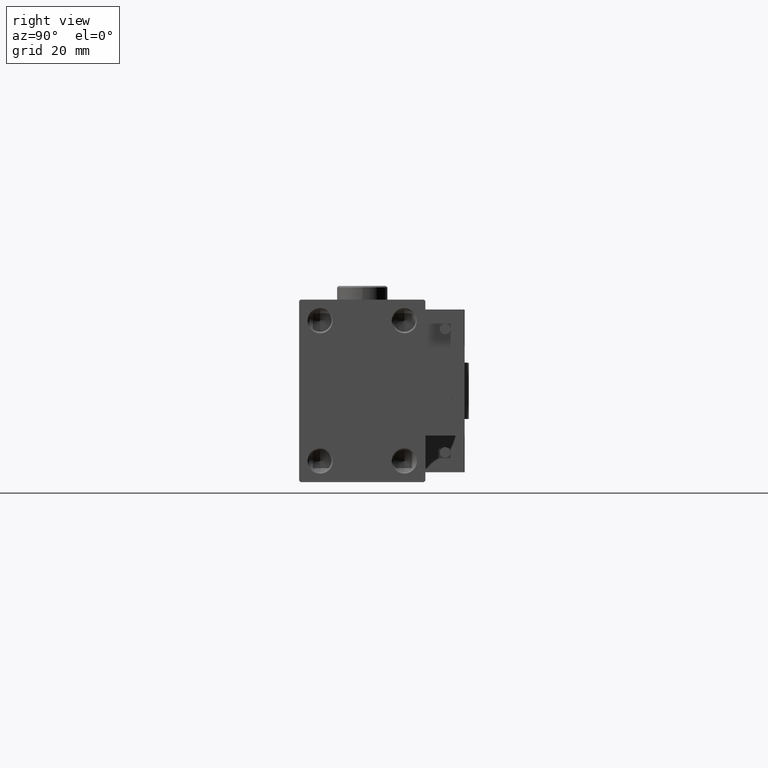
[diagram: clean part render]
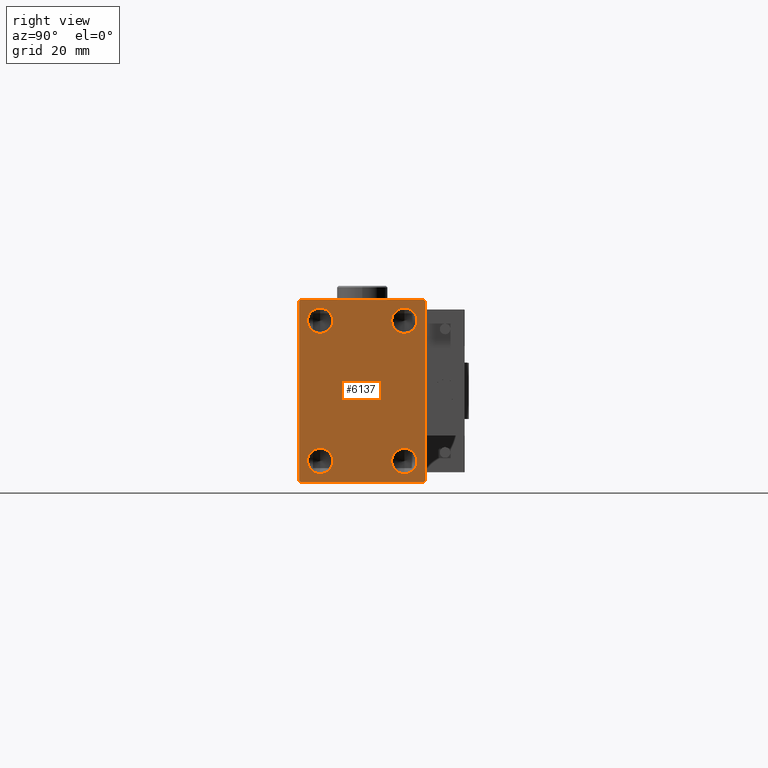
[diagram: same view with one face highlighted and labeled with its STEP entity id]
A machine part, right view. The second image highlights one B-rep face of the part: STEP entity #6137.
In plain terms, the highlighted planar face has unit normal (1, 0, 0).
Its self-contained STEP definition (entity closure, byte-faithful):
#468 = ORIENTED_EDGE ( 'NONE', *, *, #12943, .T. ) ;
#936 = DIRECTION ( 'NONE',  ( 1.000000000000000000, -0.000000000000000000, -0.000000000000000000 ) ) ;
#1618 = CARTESIAN_POINT ( 'NONE',  ( 170.0000000000000000, 22.50000000000000000, 31.99999999999999289 ) ) ;
#1869 = LINE ( 'NONE', #30060, #11277 ) ;
#2014 = LINE ( 'NONE', #38687, #17807 ) ;
#2361 = ORIENTED_EDGE ( 'NONE', *, *, #46003, .T. ) ;
#2905 = EDGE_LOOP ( 'NONE', ( #42837, #17074 ) ) ;
#3009 = AXIS2_PLACEMENT_3D ( 'NONE', #49771, #4593, #24825 ) ;
#3277 = VERTEX_POINT ( 'NONE', #50700 ) ;
#3339 = ORIENTED_EDGE ( 'NONE', *, *, #51389, .F. ) ;
#3379 = CIRCLE ( 'NONE', #22077, 4.499999999999976019 ) ;
#3417 = DIRECTION ( 'NONE',  ( 0.000000000000000000, 1.000000000000000000, 0.000000000000000000 ) ) ;
#3848 = DIRECTION ( 'NONE',  ( 1.000000000000000000, -0.000000000000000000, -0.000000000000000000 ) ) ;
#4593 = DIRECTION ( 'NONE',  ( 1.000000000000000000, -0.000000000000000000, -0.000000000000000000 ) ) ;
#4695 = EDGE_CURVE ( 'NONE', #50995, #21934, #1869, .T. ) ;
#5286 = DIRECTION ( 'NONE',  ( -0.000000000000000000, 0.7071067811865721087, -0.7071067811865230368 ) ) ;
#5811 = CIRCLE ( 'NONE', #15153, 4.499999999999976019 ) ;
#5816 = EDGE_LOOP ( 'NONE', ( #29959, #38689 ) ) ;
#5928 = VECTOR ( 'NONE', #48728, 1000.000000000000000 ) ;
#6137 = ADVANCED_FACE ( 'NONE', ( #34109, #17633, #50328, #13922, #21635 ), #46350, .T. ) ;
#6508 = CARTESIAN_POINT ( 'NONE',  ( 170.0000000000000000, 21.99999999999999289, -32.50000000000000711 ) ) ;
#6623 = CARTESIAN_POINT ( 'NONE',  ( 170.0000000000000000, -22.49999999999999289, -32.50000000000000711 ) ) ;
#6871 = AXIS2_PLACEMENT_3D ( 'NONE', #36490, #20564, #24818 ) ;
#7635 = VERTEX_POINT ( 'NONE', #16573 ) ;
#7868 = DIRECTION ( 'NONE',  ( 1.000000000000000000, -0.000000000000000000, -0.000000000000000000 ) ) ;
#8191 = VECTOR ( 'NONE', #23412, 1000.000000000000114 ) ;
#8864 = DIRECTION ( 'NONE',  ( 1.000000000000000000, 0.000000000000000000, 0.000000000000000000 ) ) ;
#9281 = ORIENTED_EDGE ( 'NONE', *, *, #38621, .T. ) ;
#9954 = CARTESIAN_POINT ( 'NONE',  ( 170.0000000000000000, 15.00000000000000178, 20.50000000000001421 ) ) ;
#10425 = CARTESIAN_POINT ( 'NONE',  ( 170.0000000000000000, -22.49999999999999289, 32.49999999999998579 ) ) ;
#10633 = VECTOR ( 'NONE', #3417, 1000.000000000000000 ) ;
#10685 = LINE ( 'NONE', #10425, #11479 ) ;
#11277 = VECTOR ( 'NONE', #46273, 1000.000000000000000 ) ;
#11479 = VECTOR ( 'NONE', #42843, 1000.000000000000000 ) ;
#12103 = CARTESIAN_POINT ( 'NONE',  ( 170.0000000000000000, 15.00000000000000178, 25.00000000000000000 ) ) ;
#12230 = VERTEX_POINT ( 'NONE', #14229 ) ;
#12943 = EDGE_CURVE ( 'NONE', #47939, #23895, #43305, .T. ) ;
#13026 = ORIENTED_EDGE ( 'NONE', *, *, #13329, .F. ) ;
#13220 = DIRECTION ( 'NONE',  ( 1.000000000000000000, -0.000000000000000000, -0.000000000000000000 ) ) ;
#13329 = EDGE_CURVE ( 'NONE', #16880, #43420, #42913, .T. ) ;
#13527 = ORIENTED_EDGE ( 'NONE', *, *, #39565, .F. ) ;
#13622 = VERTEX_POINT ( 'NONE', #26924 ) ;
#13656 = DIRECTION ( 'NONE',  ( 0.000000000000000000, 0.000000000000000000, -1.000000000000000000 ) ) ;
#13922 = FACE_BOUND ( 'NONE', #47588, .T. ) ;
#14229 = CARTESIAN_POINT ( 'NONE',  ( 170.0000000000000000, -15.00000000000000000, 29.49999999999998579 ) ) ;
#14847 = VERTEX_POINT ( 'NONE', #30792 ) ;
#15153 = AXIS2_PLACEMENT_3D ( 'NONE', #48378, #39602, #36143 ) ;
#16349 = DIRECTION ( 'NONE',  ( 0.000000000000000000, 0.000000000000000000, -1.000000000000000000 ) ) ;
#16573 = CARTESIAN_POINT ( 'NONE',  ( 170.0000000000000000, -22.49999999999999289, -32.00000000000001421 ) ) ;
#16702 = CARTESIAN_POINT ( 'NONE',  ( 170.0000000000000000, 22.00000000000000000, 32.49999999999999289 ) ) ;
#16775 = CARTESIAN_POINT ( 'NONE',  ( 170.0000000000000000, 22.50000000000000711, -31.99999999999997868 ) ) ;
#16880 = VERTEX_POINT ( 'NONE', #38428 ) ;
#16936 = CIRCLE ( 'NONE', #29643, 4.499999999999976019 ) ;
#17074 = ORIENTED_EDGE ( 'NONE', *, *, #23605, .F. ) ;
#17160 = CARTESIAN_POINT ( 'NONE',  ( 170.0000000000000000, -15.00000000000000000, -29.49999999999998579 ) ) ;
#17328 = ORIENTED_EDGE ( 'NONE', *, *, #29236, .T. ) ;
#17633 = FACE_BOUND ( 'NONE', #49168, .T. ) ;
#17807 = VECTOR ( 'NONE', #35229, 1000.000000000000000 ) ;
#18637 = LINE ( 'NONE', #34835, #8191 ) ;
#20032 = CARTESIAN_POINT ( 'NONE',  ( 170.0000000000000000, 27.25000000000061817, -27.24999999999910472 ) ) ;
#20555 = LINE ( 'NONE', #20032, #5928 ) ;
#20564 = DIRECTION ( 'NONE',  ( 1.000000000000000000, -0.000000000000000000, -0.000000000000000000 ) ) ;
#21474 = DIRECTION ( 'NONE',  ( 0.000000000000000000, 0.000000000000000000, -1.000000000000000000 ) ) ;
#21635 = FACE_OUTER_BOUND ( 'NONE', #46192, .T. ) ;
#21934 = VERTEX_POINT ( 'NONE', #25699 ) ;
#22077 = AXIS2_PLACEMENT_3D ( 'NONE', #41590, #936, #50383 ) ;
#22315 = ORIENTED_EDGE ( 'NONE', *, *, #32934, .T. ) ;
#23025 = DIRECTION ( 'NONE',  ( 1.000000000000000000, -0.000000000000000000, -0.000000000000000000 ) ) ;
#23352 = DIRECTION ( 'NONE',  ( 0.000000000000000000, -0.7071067811865279218, -0.7071067811865672237 ) ) ;
#23412 = DIRECTION ( 'NONE',  ( -0.000000000000000000, -0.7071067811865474617, 0.7071067811865474617 ) ) ;
#23605 = EDGE_CURVE ( 'NONE', #42279, #14847, #30539, .T. ) ;
#23895 = VERTEX_POINT ( 'NONE', #6508 ) ;
#24121 = AXIS2_PLACEMENT_3D ( 'NONE', #29337, #8864, #13656 ) ;
#24389 = CARTESIAN_POINT ( 'NONE',  ( 170.0000000000000000, -15.00000000000000000, -20.50000000000001776 ) ) ;
#24818 = DIRECTION ( 'NONE',  ( 0.000000000000000000, 0.000000000000000000, -1.000000000000000000 ) ) ;
#24825 = DIRECTION ( 'NONE',  ( 0.000000000000000000, 0.000000000000000000, -1.000000000000000000 ) ) ;
#25153 = ORIENTED_EDGE ( 'NONE', *, *, #4695, .T. ) ;
#25699 = CARTESIAN_POINT ( 'NONE',  ( 170.0000000000000000, -21.99999999999997868, 32.49999999999998579 ) ) ;
#26458 = ORIENTED_EDGE ( 'NONE', *, *, #42453, .T. ) ;
#26924 = CARTESIAN_POINT ( 'NONE',  ( 170.0000000000000000, -22.49999999999999289, 31.99999999999995737 ) ) ;
#27874 = VERTEX_POINT ( 'NONE', #17160 ) ;
#28615 = EDGE_CURVE ( 'NONE', #47045, #27874, #51357, .T. ) ;
#29180 = CARTESIAN_POINT ( 'NONE',  ( 170.0000000000000000, -15.00000000000000000, -25.00000000000000000 ) ) ;
#29236 = EDGE_CURVE ( 'NONE', #13622, #7635, #10685, .T. ) ;
#29337 = CARTESIAN_POINT ( 'NONE',  ( 170.0000000000000000, 0.000000000000000000, 0.000000000000000000 ) ) ;
#29643 = AXIS2_PLACEMENT_3D ( 'NONE', #12103, #3848, #16349 ) ;
#29695 = AXIS2_PLACEMENT_3D ( 'NONE', #47252, #7868, #51742 ) ;
#29959 = ORIENTED_EDGE ( 'NONE', *, *, #28615, .F. ) ;
#30060 = CARTESIAN_POINT ( 'NONE',  ( 170.0000000000000000, 22.50000000000000000, 32.49999999999999289 ) ) ;
#30539 = CIRCLE ( 'NONE', #29695, 4.499999999999976019 ) ;
#30792 = CARTESIAN_POINT ( 'NONE',  ( 170.0000000000000000, 15.00000000000000178, 29.49999999999998934 ) ) ;
#31935 = CIRCLE ( 'NONE', #33624, 4.499999999999976019 ) ;
#32934 = EDGE_CURVE ( 'NONE', #40444, #50995, #18637, .T. ) ;
#33624 = AXIS2_PLACEMENT_3D ( 'NONE', #46948, #23025, #39467 ) ;
#34109 = FACE_BOUND ( 'NONE', #2905, .T. ) ;
#34206 = EDGE_CURVE ( 'NONE', #27874, #47045, #31935, .T. ) ;
#34835 = CARTESIAN_POINT ( 'NONE',  ( 170.0000000000000000, 27.24999999999999289, 27.24999999999999289 ) ) ;
#35229 = DIRECTION ( 'NONE',  ( 0.000000000000000000, -1.067522139062650425E-16, 1.000000000000000000 ) ) ;
#36014 = ORIENTED_EDGE ( 'NONE', *, *, #45457, .F. ) ;
#36143 = DIRECTION ( 'NONE',  ( 0.000000000000000000, 0.000000000000000000, -1.000000000000000000 ) ) ;
#36490 = CARTESIAN_POINT ( 'NONE',  ( 170.0000000000000000, 15.00000000000000178, -25.00000000000000000 ) ) ;
#38428 = CARTESIAN_POINT ( 'NONE',  ( 170.0000000000000000, 15.00000000000000178, -20.50000000000001421 ) ) ;
#38621 = EDGE_CURVE ( 'NONE', #21934, #13622, #50727, .T. ) ;
#38687 = CARTESIAN_POINT ( 'NONE',  ( 170.0000000000000000, 22.50000000000000711, -32.50000000000000711 ) ) ;
#38689 = ORIENTED_EDGE ( 'NONE', *, *, #34206, .F. ) ;
#39004 = CARTESIAN_POINT ( 'NONE',  ( 170.0000000000000000, -27.25000000000060041, 27.24999999999908340 ) ) ;
#39121 = CIRCLE ( 'NONE', #6871, 4.499999999999976019 ) ;
#39467 = DIRECTION ( 'NONE',  ( 0.000000000000000000, 0.000000000000000000, -1.000000000000000000 ) ) ;
#39474 = AXIS2_PLACEMENT_3D ( 'NONE', #29180, #13220, #21474 ) ;
#39565 = EDGE_CURVE ( 'NONE', #3277, #12230, #5811, .T. ) ;
#39602 = DIRECTION ( 'NONE',  ( 1.000000000000000000, -0.000000000000000000, -0.000000000000000000 ) ) ;
#40444 = VERTEX_POINT ( 'NONE', #1618 ) ;
#40911 = CARTESIAN_POINT ( 'NONE',  ( 170.0000000000000000, -27.24999999999921840, -27.25000000000110845 ) ) ;
#41111 = CARTESIAN_POINT ( 'NONE',  ( 170.0000000000000000, -21.99999999999996447, -32.50000000000000711 ) ) ;
#41185 = EDGE_CURVE ( 'NONE', #14847, #42279, #16936, .T. ) ;
#41590 = CARTESIAN_POINT ( 'NONE',  ( 170.0000000000000000, -15.00000000000000000, 25.00000000000000000 ) ) ;
#42279 = VERTEX_POINT ( 'NONE', #9954 ) ;
#42297 = CARTESIAN_POINT ( 'NONE',  ( 170.0000000000000000, 15.00000000000000178, -29.49999999999998934 ) ) ;
#42453 = EDGE_CURVE ( 'NONE', #23895, #52046, #20555, .T. ) ;
#42459 = VECTOR ( 'NONE', #5286, 1000.000000000000000 ) ;
#42837 = ORIENTED_EDGE ( 'NONE', *, *, #41185, .F. ) ;
#42843 = DIRECTION ( 'NONE',  ( 0.000000000000000000, 0.000000000000000000, -1.000000000000000000 ) ) ;
#42913 = CIRCLE ( 'NONE', #3009, 4.499999999999976019 ) ;
#43305 = LINE ( 'NONE', #6623, #10633 ) ;
#43420 = VERTEX_POINT ( 'NONE', #42297 ) ;
#43689 = EDGE_CURVE ( 'NONE', #7635, #47939, #49423, .T. ) ;
#45457 = EDGE_CURVE ( 'NONE', #43420, #16880, #39121, .T. ) ;
#46003 = EDGE_CURVE ( 'NONE', #52046, #40444, #2014, .T. ) ;
#46192 = EDGE_LOOP ( 'NONE', ( #25153, #9281, #17328, #49056, #468, #26458, #2361, #22315 ) ) ;
#46273 = DIRECTION ( 'NONE',  ( 0.000000000000000000, -1.000000000000000000, -1.541976423090495633E-16 ) ) ;
#46350 = PLANE ( 'NONE',  #24121 ) ;
#46948 = CARTESIAN_POINT ( 'NONE',  ( 170.0000000000000000, -15.00000000000000000, -25.00000000000000000 ) ) ;
#47045 = VERTEX_POINT ( 'NONE', #24389 ) ;
#47252 = CARTESIAN_POINT ( 'NONE',  ( 170.0000000000000000, 15.00000000000000178, 25.00000000000000000 ) ) ;
#47588 = EDGE_LOOP ( 'NONE', ( #13026, #36014 ) ) ;
#47939 = VERTEX_POINT ( 'NONE', #41111 ) ;
#48378 = CARTESIAN_POINT ( 'NONE',  ( 170.0000000000000000, -15.00000000000000000, 25.00000000000000000 ) ) ;
#48728 = DIRECTION ( 'NONE',  ( -0.000000000000000000, 0.7071067811865279218, 0.7071067811865672237 ) ) ;
#49056 = ORIENTED_EDGE ( 'NONE', *, *, #43689, .T. ) ;
#49168 = EDGE_LOOP ( 'NONE', ( #3339, #13527 ) ) ;
#49423 = LINE ( 'NONE', #40911, #42459 ) ;
#49771 = CARTESIAN_POINT ( 'NONE',  ( 170.0000000000000000, 15.00000000000000178, -25.00000000000000000 ) ) ;
#50328 = FACE_BOUND ( 'NONE', #5816, .T. ) ;
#50383 = DIRECTION ( 'NONE',  ( 0.000000000000000000, 0.000000000000000000, -1.000000000000000000 ) ) ;
#50700 = CARTESIAN_POINT ( 'NONE',  ( 170.0000000000000000, -15.00000000000000000, 20.50000000000001776 ) ) ;
#50727 = LINE ( 'NONE', #39004, #50755 ) ;
#50755 = VECTOR ( 'NONE', #23352, 1000.000000000000000 ) ;
#50995 = VERTEX_POINT ( 'NONE', #16702 ) ;
#51357 = CIRCLE ( 'NONE', #39474, 4.499999999999976019 ) ;
#51389 = EDGE_CURVE ( 'NONE', #12230, #3277, #3379, .T. ) ;
#51742 = DIRECTION ( 'NONE',  ( 0.000000000000000000, 0.000000000000000000, -1.000000000000000000 ) ) ;
#52046 = VERTEX_POINT ( 'NONE', #16775 ) ;